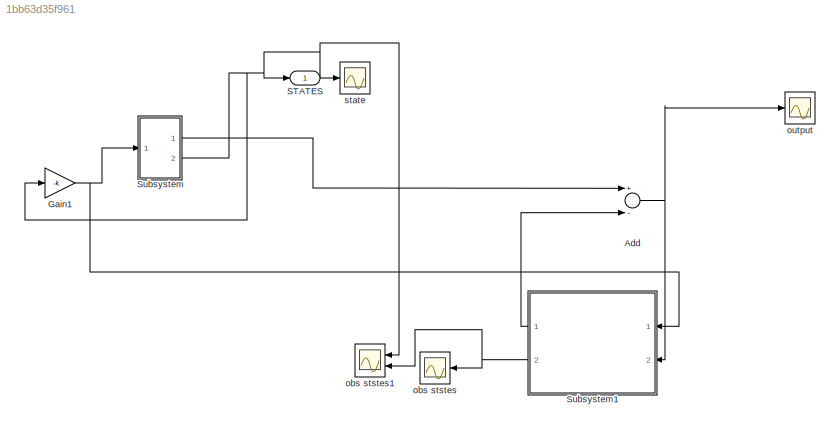
MODEL slx_1bb63d35f961
KIND model
CONFIG AbsTol = auto
CONFIG FixedStep = auto
CONFIG MaxStep = auto
CONFIG MinStep = auto
CONFIG RelTol = 1e-3
CONFIG SampleTimeConstraint = Unconstrained
CONFIG Solver = ode45
CONFIG SolverMode = Auto
CONFIG SolverName = ode45
CONFIG StartTime = 0.0
CONFIG StopTime = 10.0
BLOCK [Sum] Add
  InputSameDT = off
  Inputs = +-
  OutDataTypeStr = Inherit: Inherit via internal rule
  Ports = [2, 1]
  SaturateOnIntegerOverflow = off
BLOCK [Gain] Gain1
  Gain = -k
  Multiplication = Matrix(K*u)
  OutDataTypeStr = Inherit: Inherit via internal rule
  ParamDataTypeStr = Inherit: Inherit via internal rule
  SaturateOnIntegerOverflow = off
BLOCK [Outport] STATES
  IconDisplay = Port number
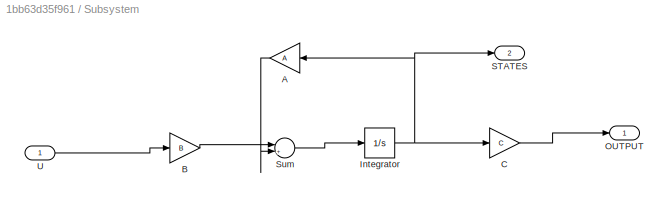
BLOCK [SubSystem] Subsystem
  Ports = [1, 2]
  RequestExecContextInheritance = off
  Variant = off
BLOCK [Gain] Subsystem/A
  Gain = A
  Multiplication = Matrix(K*u)
  OutDataTypeStr = Inherit: Inherit via internal rule
  ParamDataTypeStr = Inherit: Inherit via internal rule
  SaturateOnIntegerOverflow = off
BLOCK [Gain] Subsystem/B
  Gain = B
  Multiplication = Matrix(K*u)
  OutDataTypeStr = Inherit: Inherit via internal rule
  ParamDataTypeStr = Inherit: Inherit via internal rule
  SaturateOnIntegerOverflow = off
BLOCK [Gain] Subsystem/C
  Gain = C
  Multiplication = Matrix(K*u)
  OutDataTypeStr = Inherit: Inherit via internal rule
  ParamDataTypeStr = Inherit: Inherit via internal rule
  SaturateOnIntegerOverflow = off
BLOCK [Integrator] Subsystem/Integrator
  InitialCondition = [1;1]
  Ports = [1, 1]
BLOCK [Outport] Subsystem/OUTPUT
  IconDisplay = Port number
BLOCK [Outport] Subsystem/STATES
  IconDisplay = Port number
  Port = 2
BLOCK [Sum] Subsystem/Sum
  IconShape = round
  InputSameDT = off
  Inputs = |++
  OutDataTypeStr = Inherit: Inherit via internal rule
  Ports = [2, 1]
  SaturateOnIntegerOverflow = off
BLOCK [Inport] Subsystem/U
  IconDisplay = Port number
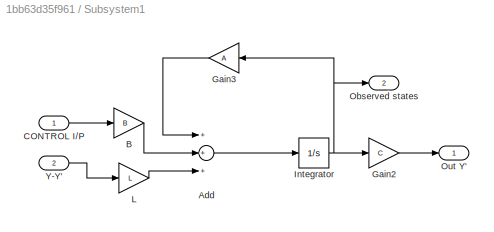
BLOCK [SubSystem] Subsystem1
  Ports = [2, 2]
  RequestExecContextInheritance = off
  Variant = off
BLOCK [Sum] Subsystem1/Add
  InputSameDT = off
  Inputs = +++
  OutDataTypeStr = Inherit: Inherit via internal rule
  Ports = [3, 1]
  SaturateOnIntegerOverflow = off
BLOCK [Gain] Subsystem1/B
  Gain = B
  Multiplication = Matrix(K*u)
  OutDataTypeStr = Inherit: Inherit via internal rule
  ParamDataTypeStr = Inherit: Inherit via internal rule
  SaturateOnIntegerOverflow = off
BLOCK [Inport] Subsystem1/CONTROL I//P
  IconDisplay = Port number
BLOCK [Gain] Subsystem1/Gain2
  Gain = C
  Multiplication = Matrix(K*u)
  OutDataTypeStr = Inherit: Inherit via internal rule
  ParamDataTypeStr = Inherit: Inherit via internal rule
  SaturateOnIntegerOverflow = off
BLOCK [Gain] Subsystem1/Gain3
  Gain = A
  Multiplication = Matrix(K*u)
  OutDataTypeStr = Inherit: Inherit via internal rule
  ParamDataTypeStr = Inherit: Inherit via internal rule
  SaturateOnIntegerOverflow = off
BLOCK [Integrator] Subsystem1/Integrator
  InitialCondition = [1;1]
  Ports = [1, 1]
BLOCK [Gain] Subsystem1/L
  Gain = L
  Multiplication = Matrix(K*u)
  OutDataTypeStr = Inherit: Inherit via internal rule
  ParamDataTypeStr = Inherit: Inherit via internal rule
  SaturateOnIntegerOverflow = off
BLOCK [Outport] Subsystem1/Observed states
  IconDisplay = Port number
  Port = 2
BLOCK [Outport] Subsystem1/Out Y'
  IconDisplay = Port number
BLOCK [Inport] Subsystem1/Y-Y'
  IconDisplay = Port number
  Port = 2
BLOCK [Scope] obs ststes
  Ports = [1]
  ScopeSpecificationString = Simulink.scopes.TimeScopeBlockCfg('CurrentConfiguration', extmgr.ConfigurationSet(extmgr.Configuration('Core','General UI',true),extmgr.Configuration('Core','Source UI',true),extmgr.Configuration('Sources','WiredSimulink',true,'DataLoggingVariableName','ScopeData1'),extmgr.Configuration('Visuals','Time Domain',true,'SerializedDisplays',{struct('MinYLimReal','-0.92248','MaxYLimReal','4.45626','YLab...<+1441ch>
BLOCK [Scope] obs ststes1
  NumInputPorts = 2
  Ports = [2]
  ScopeSpecificationString = Simulink.scopes.TimeScopeBlockCfg('CurrentConfiguration', extmgr.ConfigurationSet(extmgr.Configuration('Core','General UI',true),extmgr.Configuration('Core','Source UI',true),extmgr.Configuration('Sources','WiredSimulink',true,'DataLoggingVariableName','ScopeData3'),extmgr.Configuration('Visuals','Time Domain',true,'SerializedDisplays',{struct('MinYLimReal','-0.92248','MaxYLimReal','4.45626','YLab...<+1475ch>
BLOCK [Scope] output
  Ports = [1]
  ScopeSpecificationString = Simulink.scopes.TimeScopeBlockCfg('CurrentConfiguration', extmgr.ConfigurationSet(extmgr.Configuration('Core','General UI',true),extmgr.Configuration('Core','Source UI',true),extmgr.Configuration('Sources','WiredSimulink',true,'DataLoggingVariableName','ScopeData2'),extmgr.Configuration('Visuals','Time Domain',true,'SerializedDisplays',{struct('MinYLimReal','-1.00000','MaxYLimReal','1.00000','YLab...<+1413ch>
BLOCK [Scope] state
  Ports = [1]
  ScopeSpecificationString = Simulink.scopes.TimeScopeBlockCfg('CurrentConfiguration', extmgr.ConfigurationSet(extmgr.Configuration('Core','General UI',true),extmgr.Configuration('Core','Source UI',true),extmgr.Configuration('Sources','WiredSimulink',true),extmgr.Configuration('Visuals','Time Domain',true,'SerializedDisplays',{struct('MinYLimReal','-0.92248','MaxYLimReal','4.45626','YLabelReal','','MinYLimMag','0.00000','MaxY...<+1427ch>
NET Add:1 -> Subsystem1:2, output:1
NET Gain1:1 -> Subsystem1:1, Subsystem:1
LINE Subsystem/A:1 -> Subsystem/Sum:2
LINE Subsystem/B:1 -> Subsystem/Sum:1
LINE Subsystem/C:1 -> Subsystem/OUTPUT:1
NET Subsystem/Integrator:1 -> Subsystem/A:1, Subsystem/C:1, Subsystem/STATES:1
LINE Subsystem/Sum:1 -> Subsystem/Integrator:1
LINE Subsystem/U:1 -> Subsystem/B:1
LINE Subsystem1/Add:1 -> Subsystem1/Integrator:1
LINE Subsystem1/B:1 -> Subsystem1/Add:2
LINE Subsystem1/CONTROL I//P:1 -> Subsystem1/B:1
LINE Subsystem1/Gain2:1 -> Subsystem1/Out Y':1
LINE Subsystem1/Gain3:1 -> Subsystem1/Add:1
NET Subsystem1/Integrator:1 -> Subsystem1/Gain2:1, Subsystem1/Gain3:1, Subsystem1/Observed states:1
LINE Subsystem1/L:1 -> Subsystem1/Add:3
LINE Subsystem1/Y-Y':1 -> Subsystem1/L:1
LINE Subsystem1:1 -> Add:2
NET Subsystem1:2 -> obs ststes1:2, obs ststes:1
LINE Subsystem:1 -> Add:1
NET Subsystem:2 -> Gain1:1, STATES:1, obs ststes1:1, state:1
note: NET lines group one-source signal fan-out (src -> all destinations, sorted); 1:1 wires keep LINE
